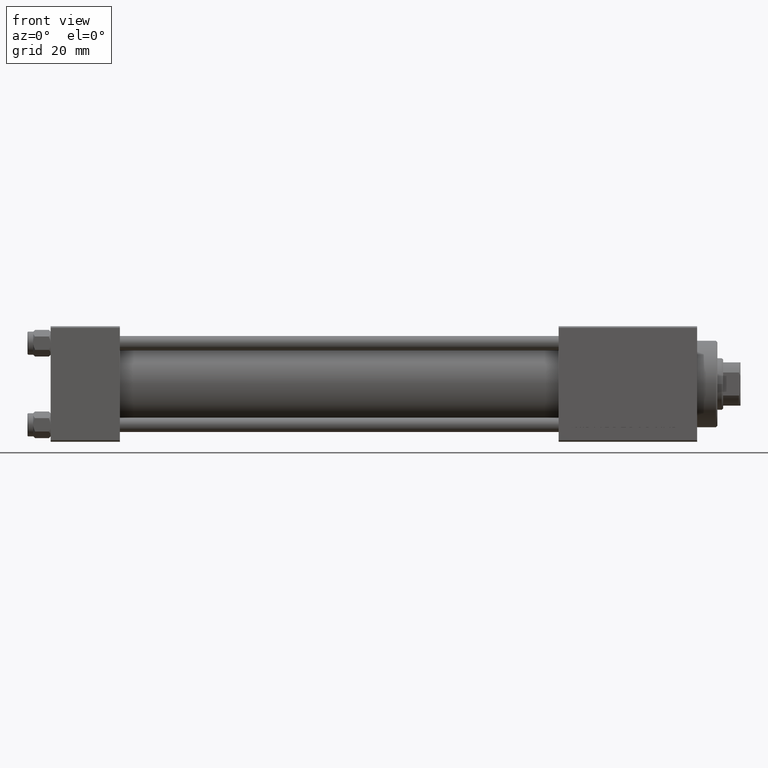
[diagram: clean part render]
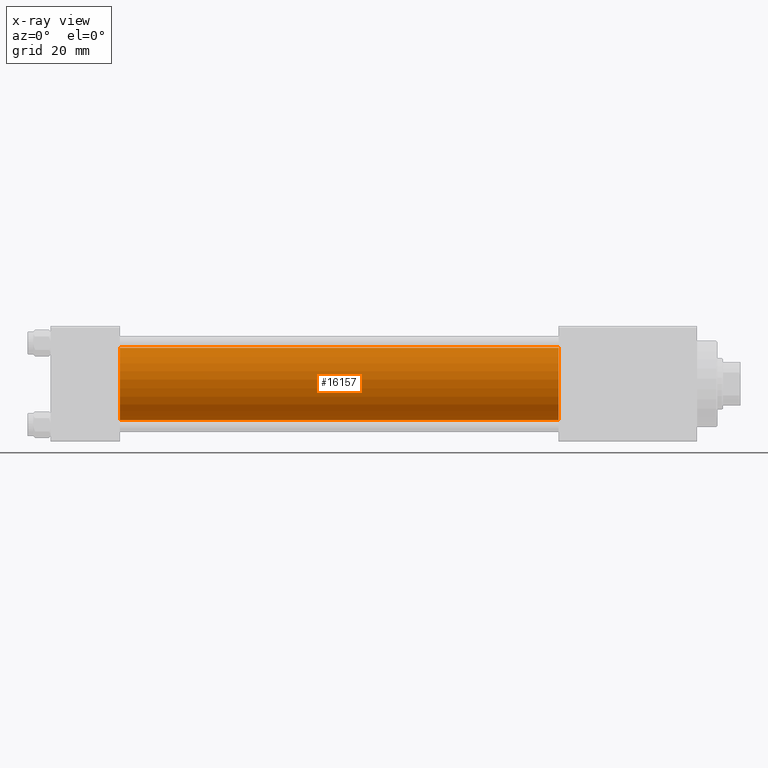
[diagram: x-ray — body ghosted, one internal face saturated and labeled with its STEP entity id]
A machine part, front view, then the same camera in x-ray: the body is ghosted and one INTERNAL B-rep face — a face not visible from any outside direction — is saturated and labeled: STEP entity #16157.
In plain terms, the highlighted cylindrical surface (edge-blend (fillet) strip) has radius 12.5 mm, axis along (-1, -0, -0).
Its self-contained STEP definition (entity closure, byte-faithful):
#838 = DIRECTION ( 'NONE',  ( 1.000000000000000000, 0.000000000000000000, 0.000000000000000000 ) ) ;
#1401 = VECTOR ( 'NONE', #48662, 1000.000000000000000 ) ;
#2173 = LINE ( 'NONE', #10046, #1401 ) ;
#2754 = EDGE_CURVE ( 'NONE', #38597, #25821, #2173, .T. ) ;
#5394 = DIRECTION ( 'NONE',  ( 0.000000000000000000, 0.000000000000000000, -1.000000000000000000 ) ) ;
#5614 = EDGE_CURVE ( 'NONE', #48120, #40323, #49472, .T. ) ;
#7018 = DIRECTION ( 'NONE',  ( 1.000000000000000000, 0.000000000000000000, 0.000000000000000000 ) ) ;
#8342 = AXIS2_PLACEMENT_3D ( 'NONE', #23958, #838, #5394 ) ;
#8664 = CYLINDRICAL_SURFACE ( 'NONE', #11503, 12.49999999999999645 ) ;
#8677 = VECTOR ( 'NONE', #46144, 1000.000000000000000 ) ;
#9393 = ORIENTED_EDGE ( 'NONE', *, *, #5614, .T. ) ;
#10046 = CARTESIAN_POINT ( 'NONE',  ( 176.0000000000000000, -2.602085213965210642E-15, 12.49999999999999645 ) ) ;
#10781 = CIRCLE ( 'NONE', #8342, 12.49999999999999645 ) ;
#11503 = AXIS2_PLACEMENT_3D ( 'NONE', #12244, #39159, #28474 ) ;
#12244 = CARTESIAN_POINT ( 'NONE',  ( 176.0000000000000000, -2.602085213965210642E-15, 0.000000000000000000 ) ) ;
#16053 = FACE_OUTER_BOUND ( 'NONE', #48682, .T. ) ;
#16157 = ADVANCED_FACE ( 'NONE', ( #16053 ), #8664, .F. ) ;
#19219 = CARTESIAN_POINT ( 'NONE',  ( 24.00000000000000000, -2.602085213965210642E-15, 12.49999999999999645 ) ) ;
#19227 = CARTESIAN_POINT ( 'NONE',  ( 176.0000000000000000, -1.071276715031019515E-15, -12.49999999999999645 ) ) ;
#19528 = CARTESIAN_POINT ( 'NONE',  ( 24.00000000000000000, -1.071276715031019515E-15, -12.49999999999999645 ) ) ;
#21704 = ORIENTED_EDGE ( 'NONE', *, *, #2754, .F. ) ;
#22038 = DIRECTION ( 'NONE',  ( 0.000000000000000000, 0.000000000000000000, -1.000000000000000000 ) ) ;
#23958 = CARTESIAN_POINT ( 'NONE',  ( 176.0000000000000000, -2.602085213965210642E-15, 0.000000000000000000 ) ) ;
#23978 = AXIS2_PLACEMENT_3D ( 'NONE', #33706, #7018, #22038 ) ;
#25821 = VERTEX_POINT ( 'NONE', #19219 ) ;
#26129 = ORIENTED_EDGE ( 'NONE', *, *, #46020, .F. ) ;
#28474 = DIRECTION ( 'NONE',  ( 0.000000000000000000, 0.000000000000000000, 1.000000000000000000 ) ) ;
#32288 = CARTESIAN_POINT ( 'NONE',  ( 176.0000000000000000, -1.071276715031019515E-15, -12.49999999999999645 ) ) ;
#32436 = CARTESIAN_POINT ( 'NONE',  ( 176.0000000000000000, -2.602085213965210642E-15, 12.49999999999999645 ) ) ;
#33706 = CARTESIAN_POINT ( 'NONE',  ( 24.00000000000000000, -2.602085213965210642E-15, 0.000000000000000000 ) ) ;
#33738 = CIRCLE ( 'NONE', #23978, 12.49999999999999645 ) ;
#38597 = VERTEX_POINT ( 'NONE', #32436 ) ;
#39159 = DIRECTION ( 'NONE',  ( -1.000000000000000000, -0.000000000000000000, -0.000000000000000000 ) ) ;
#39847 = EDGE_CURVE ( 'NONE', #38597, #48120, #10781, .T. ) ;
#40323 = VERTEX_POINT ( 'NONE', #19528 ) ;
#41146 = ORIENTED_EDGE ( 'NONE', *, *, #39847, .T. ) ;
#46020 = EDGE_CURVE ( 'NONE', #25821, #40323, #33738, .T. ) ;
#46144 = DIRECTION ( 'NONE',  ( -1.000000000000000000, -0.000000000000000000, -0.000000000000000000 ) ) ;
#48120 = VERTEX_POINT ( 'NONE', #32288 ) ;
#48662 = DIRECTION ( 'NONE',  ( -1.000000000000000000, -0.000000000000000000, -0.000000000000000000 ) ) ;
#48682 = EDGE_LOOP ( 'NONE', ( #41146, #9393, #26129, #21704 ) ) ;
#49472 = LINE ( 'NONE', #19227, #8677 ) ;